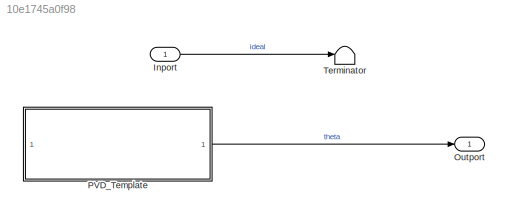
MODEL slx_10e1745a0f98
KIND model
CONFIG AbsTol = auto
CONFIG EnableMultiTasking = off
CONFIG FixedStep = auto
CONFIG MaxStep = 0.01
CONFIG MinStep = auto
CONFIG RelTol = 1e-3
CONFIG SampleTimeConstraint = Unconstrained
CONFIG SolverName = VariableStepAuto
CONFIG StartTime = 0.0
CONFIG StopTime = 10
BLOCK [Inport] Inport
BLOCK [Outport] Outport
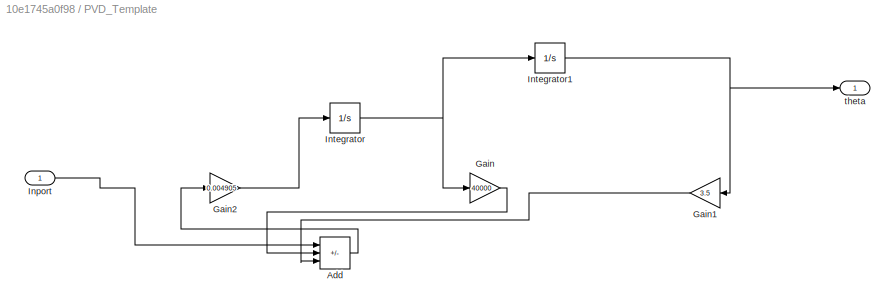
BLOCK [SubSystem] PVD_Template
BLOCK [Sum] PVD_Template/Add
  IconShape = rectangular
  Inputs = +--
BLOCK [Gain] PVD_Template/Gain
  Gain = 40000
BLOCK [Gain] PVD_Template/Gain1
  Gain = 3.5
  NameLocation = top
BLOCK [Gain] PVD_Template/Gain2
  Gain = 0.004905
BLOCK [Inport] PVD_Template/Inport
BLOCK [Integrator] PVD_Template/Integrator
BLOCK [Integrator] PVD_Template/Integrator1
BLOCK [Outport] PVD_Template/theta
BLOCK [Terminator] Terminator
LINE Inport:1 -> Terminator:1
LINE PVD_Template/Add:1 -> PVD_Template/Gain2:1
LINE PVD_Template/Gain1:1 -> PVD_Template/Add:3
LINE PVD_Template/Gain2:1 -> PVD_Template/Integrator:1
LINE PVD_Template/Gain:1 -> PVD_Template/Add:2
LINE PVD_Template/Inport:1 -> PVD_Template/Add:1
NET PVD_Template/Integrator1:1 -> PVD_Template/Gain1:1, PVD_Template/theta:1
NET PVD_Template/Integrator:1 -> PVD_Template/Gain:1, PVD_Template/Integrator1:1
LINE PVD_Template:1 -> Outport:1
note: NET lines group one-source signal fan-out (src -> all destinations, sorted); 1:1 wires keep LINE
